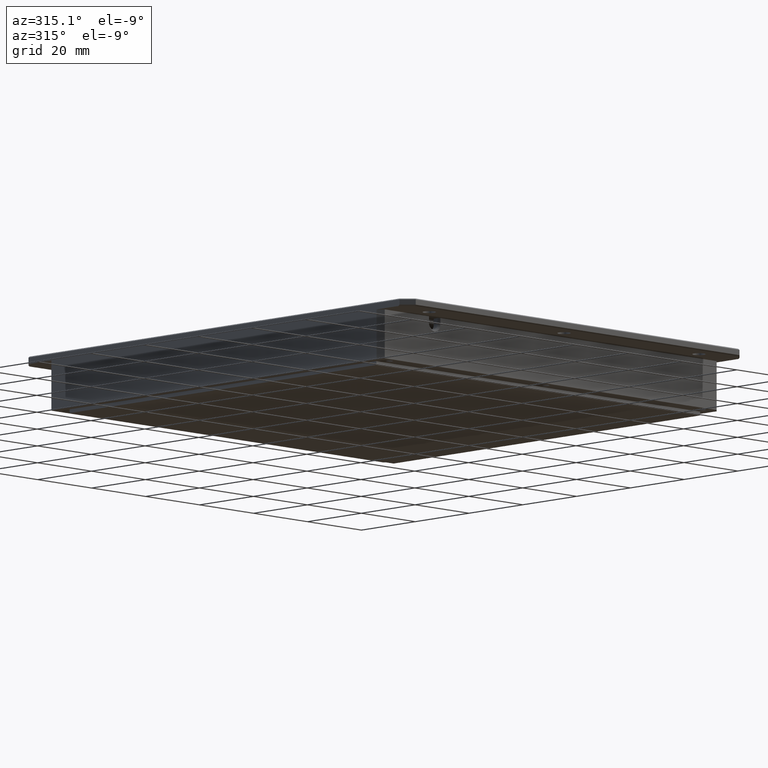
[diagram: clean part render]
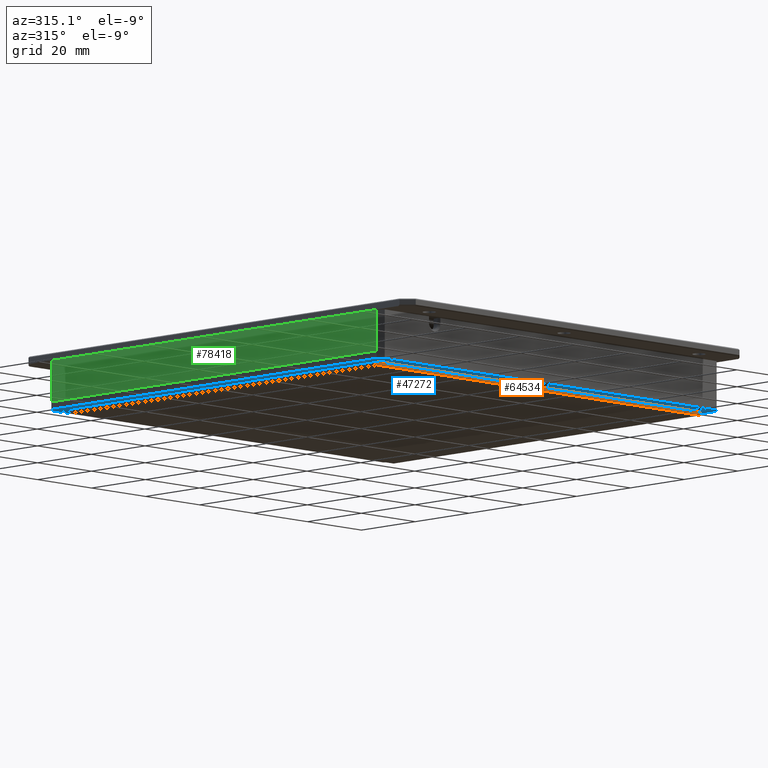
[diagram: same view with three faces highlighted in distinct colors, each labeled with its STEP entity id]
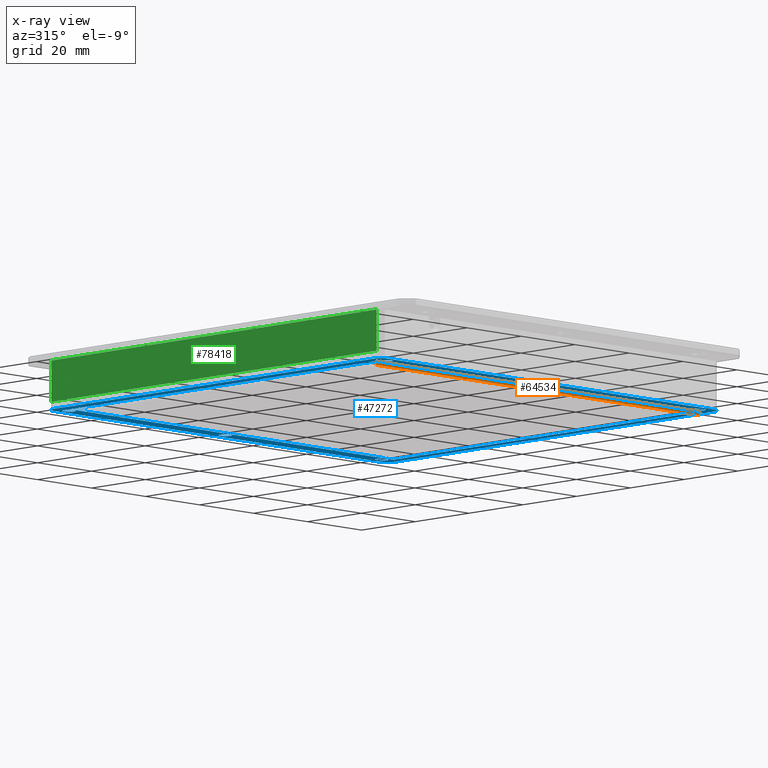
[diagram: x-ray of the same camera — body ghosted, the three highlighted faces saturated]
A machine part, auxiliary view with three faces highlighted in distinct colors.
The next image is the same camera in x-ray (body ghosted, the three faces saturated) — at least one of them is partly hidden behind the body in this view.
Their STEP definitions:

[orange] entity #64534 — the highlighted planar face has unit normal (0, 1, 0).
#1108 = DIRECTION ( 'NONE',  ( -0.0000000000000000000, -0.0000000000000000000, 1.000000000000000000 ) ) ;
#1121 = CARTESIAN_POINT ( 'NONE',  ( -59.99999999999997200, -46.11034746086290400, -3.000000000016370500 ) ) ;
#1645 = PLANE ( 'NONE',  #49686 ) ;
#4126 = CARTESIAN_POINT ( 'NONE',  ( 60.00000000000002100, -46.11034746086290400, -3.000000000016370500 ) ) ;
#5935 = VERTEX_POINT ( 'NONE', #4126 ) ;
#6171 = CARTESIAN_POINT ( 'NONE',  ( -59.99999999999997200, -46.11034746086290400, -3.000000000016370500 ) ) ;
#8772 = CARTESIAN_POINT ( 'NONE',  ( 60.00000000000002100, -46.11034746086290400, -3.000000000016370500 ) ) ;
#12817 = EDGE_LOOP ( 'NONE', ( #40520, #29460, #48144, #79029 ) ) ;
#13153 = LINE ( 'NONE', #6171, #85944 ) ;
#13358 = DIRECTION ( 'NONE',  ( -1.000000000000000000, 0.0000000000000000000, 0.0000000000000000000 ) ) ;
#15266 = DIRECTION ( 'NONE',  ( 0.0000000000000000000, -0.0000000000000000000, 1.000000000000000000 ) ) ;
#20497 = EDGE_CURVE ( 'NONE', #35828, #28870, #13153, .T. ) ;
#25484 = FACE_OUTER_BOUND ( 'NONE', #12817, .T. ) ;
#28870 = VERTEX_POINT ( 'NONE', #64543 ) ;
#29460 = ORIENTED_EDGE ( 'NONE', *, *, #20497, .F. ) ;
#33632 = DIRECTION ( 'NONE',  ( -1.000000000000000000, 0.0000000000000000000, 0.0000000000000000000 ) ) ;
#35828 = VERTEX_POINT ( 'NONE', #1121 ) ;
#36769 = CARTESIAN_POINT ( 'NONE',  ( 60.00000000000002100, -46.11034746086289700, -2.000000000016370500 ) ) ;
#40520 = ORIENTED_EDGE ( 'NONE', *, *, #81345, .T. ) ;
#42077 = EDGE_CURVE ( 'NONE', #5935, #68861, #46739, .T. ) ;
#42523 = VECTOR ( 'NONE', #13358, 1000.000000000000000 ) ;
#43337 = CARTESIAN_POINT ( 'NONE',  ( 60.00000000000002100, -46.11034746086290400, -3.000000000016370500 ) ) ;
#46739 = LINE ( 'NONE', #43337, #75382 ) ;
#48069 = DIRECTION ( 'NONE',  ( -0.0000000000000000000, -0.0000000000000000000, 1.000000000000000000 ) ) ;
#48144 = ORIENTED_EDGE ( 'NONE', *, *, #83449, .F. ) ;
#49686 = AXIS2_PLACEMENT_3D ( 'NONE', #8772, #71888, #15266 ) ;
#49903 = LINE ( 'NONE', #75845, #74246 ) ;
#64534 = ADVANCED_FACE ( 'NONE', ( #25484 ), #1645, .F. ) ;
#64543 = CARTESIAN_POINT ( 'NONE',  ( -59.99999999999997200, -46.11034746086290400, -2.000000000016370500 ) ) ;
#68861 = VERTEX_POINT ( 'NONE', #36769 ) ;
#71888 = DIRECTION ( 'NONE',  ( 0.0000000000000000000, 1.000000000000000000, 0.0000000000000000000 ) ) ;
#74246 = VECTOR ( 'NONE', #33632, 1000.000000000000000 ) ;
#75382 = VECTOR ( 'NONE', #1108, 1000.000000000000000 ) ;
#75845 = CARTESIAN_POINT ( 'NONE',  ( 60.00000000000002100, -46.11034746086290400, -2.000000000016370500 ) ) ;
#79029 = ORIENTED_EDGE ( 'NONE', *, *, #42077, .T. ) ;
#80078 = LINE ( 'NONE', #84217, #42523 ) ;
#81345 = EDGE_CURVE ( 'NONE', #68861, #28870, #49903, .T. ) ;
#83449 = EDGE_CURVE ( 'NONE', #5935, #35828, #80078, .T. ) ;
#84217 = CARTESIAN_POINT ( 'NONE',  ( 60.00000000000002100, -46.11034746086290400, -3.000000000016370500 ) ) ;
#85944 = VECTOR ( 'NONE', #48069, 1000.000000000000000 ) ;

[blue] entity #47272 — the highlighted planar face has unit normal (0, 0, 1).
#9 = CARTESIAN_POINT ( 'NONE',  ( -58.35509736540662800, 69.88965253913714500, -1.999999999969077000 ) ) ;
#71 = LINE ( 'NONE', #63520, #18876 ) ;
#552 = CARTESIAN_POINT ( 'NONE',  ( 62.64490263459333600, -49.61034746086289700, -2.000000000016370500 ) ) ;
#622 = AXIS2_PLACEMENT_3D ( 'NONE', #56085, #42214, #70565 ) ;
#773 = ORIENTED_EDGE ( 'NONE', *, *, #18297, .T. ) ;
#918 = EDGE_CURVE ( 'NONE', #89419, #37714, #80436, .T. ) ;
#1134 = DIRECTION ( 'NONE',  ( -1.000000000000000000, 0.0000000000000000000, 0.0000000000000000000 ) ) ;
#1382 = VERTEX_POINT ( 'NONE', #5742 ) ;
#2304 = CARTESIAN_POINT ( 'NONE',  ( -63.35509736540666400, -51.11034746086286900, -2.000000000016370500 ) ) ;
#2929 = DIRECTION ( 'NONE',  ( 2.220446049250313100E-016, 1.000000000000000000, 0.0000000000000000000 ) ) ;
#2947 = EDGE_CURVE ( 'NONE', #38451, #64689, #91327, .T. ) ;
#4048 = DIRECTION ( 'NONE',  ( 0.0000000000000000000, 0.0000000000000000000, -1.000000000000000000 ) ) ;
#4149 = EDGE_LOOP ( 'NONE', ( #23413, #14849 ) ) ;
#4340 = DIRECTION ( 'NONE',  ( -1.000000000000000000, 0.0000000000000000000, 0.0000000000000000000 ) ) ;
#4723 = CARTESIAN_POINT ( 'NONE',  ( -63.35509736540666400, -49.61034746086287600, -2.000000000016370500 ) ) ;
#5742 = CARTESIAN_POINT ( 'NONE',  ( 60.00000000000003600, 67.88965253913707400, -2.000000000016370500 ) ) ;
#5744 = ORIENTED_EDGE ( 'NONE', *, *, #81161, .F. ) ;
#6207 = DIRECTION ( 'NONE',  ( -1.000000000000000000, 0.0000000000000000000, 0.0000000000000000000 ) ) ;
#6376 = DIRECTION ( 'NONE',  ( -1.217349807703022600E-016, -1.000000000000000000, 0.0000000000000000000 ) ) ;
#7199 = CARTESIAN_POINT ( 'NONE',  ( -61.85509736540663500, -51.11034746086287600, -2.000000000016370500 ) ) ;
#7378 = VERTEX_POINT ( 'NONE', #42398 ) ;
#7430 = EDGE_CURVE ( 'NONE', #7378, #89419, #47610, .T. ) ;
#7675 = EDGE_CURVE ( 'NONE', #9883, #77764, #59587, .T. ) ;
#8282 = CIRCLE ( 'NONE', #34198, 1.799999999983814500 ) ;
#9245 = LINE ( 'NONE', #2304, #40041 ) ;
#9883 = VERTEX_POINT ( 'NONE', #51846 ) ;
#11172 = LINE ( 'NONE', #18574, #13364 ) ;
#11349 = EDGE_CURVE ( 'NONE', #1382, #68861, #35692, .T. ) ;
#11491 = ORIENTED_EDGE ( 'NONE', *, *, #83712, .F. ) ;
#11871 = DIRECTION ( 'NONE',  ( -0.0000000000000000000, -0.0000000000000000000, 1.000000000000000000 ) ) ;
#12362 = DIRECTION ( 'NONE',  ( -1.000000000000000000, 0.0000000000000000000, 0.0000000000000000000 ) ) ;
#13364 = VECTOR ( 'NONE', #47492, 1000.000000000000000 ) ;
#13428 = CARTESIAN_POINT ( 'NONE',  ( -59.99999999999995700, 67.88965253913708900, -2.000000000016370500 ) ) ;
#14096 = DIRECTION ( 'NONE',  ( 0.7071067811865411300, 0.7071067811865539000, -0.0000000000000000000 ) ) ;
#14842 = CARTESIAN_POINT ( 'NONE',  ( 59.44490263459170600, -48.11034746086288300, -2.000000000025920200 ) ) ;
#14849 = ORIENTED_EDGE ( 'NONE', *, *, #30226, .F. ) ;
#16383 = FACE_BOUND ( 'NONE', #25986, .T. ) ;
#17476 = EDGE_LOOP ( 'NONE', ( #5744, #28002 ) ) ;
#18047 = CARTESIAN_POINT ( 'NONE',  ( -0.3550973654066341700, 69.88965253913711700, -2.000000000025920200 ) ) ;
#18297 = EDGE_CURVE ( 'NONE', #63561, #7378, #71, .T. ) ;
#18562 = DIRECTION ( 'NONE',  ( 0.0000000000000000000, 0.0000000000000000000, -1.000000000000000000 ) ) ;
#18574 = CARTESIAN_POINT ( 'NONE',  ( 62.64490263459336500, 72.88965253913708900, -2.000000000016370500 ) ) ;
#18876 = VECTOR ( 'NONE', #27490, 1000.000000000000000 ) ;
#19346 = ORIENTED_EDGE ( 'NONE', *, *, #31460, .F. ) ;
#19444 = CARTESIAN_POINT ( 'NONE',  ( 62.64490263459333600, -51.11034746086289700, -2.000000000016370500 ) ) ;
#19892 = DIRECTION ( 'NONE',  ( -1.000000000000000000, 0.0000000000000000000, 0.0000000000000000000 ) ) ;
#20313 = VERTEX_POINT ( 'NONE', #32709 ) ;
#20483 = DIRECTION ( 'NONE',  ( 0.0000000000000000000, 0.0000000000000000000, -1.000000000000000000 ) ) ;
#20741 = FACE_BOUND ( 'NONE', #53579, .T. ) ;
#21070 = ORIENTED_EDGE ( 'NONE', *, *, #63296, .T. ) ;
#22645 = EDGE_CURVE ( 'NONE', #85951, #26176, #56727, .T. ) ;
#23360 = AXIS2_PLACEMENT_3D ( 'NONE', #24694, #4048, #4340 ) ;
#23413 = ORIENTED_EDGE ( 'NONE', *, *, #22645, .F. ) ;
#24269 = VERTEX_POINT ( 'NONE', #82289 ) ;
#24383 = DIRECTION ( 'NONE',  ( -1.000000000000000000, 0.0000000000000000000, 0.0000000000000000000 ) ) ;
#24694 = CARTESIAN_POINT ( 'NONE',  ( -0.3550973654066619200, -48.11034746086286900, -2.000000000025920200 ) ) ;
#24703 = AXIS2_PLACEMENT_3D ( 'NONE', #69357, #54587, #12362 ) ;
#25208 = FACE_BOUND ( 'NONE', #80246, .T. ) ;
#25522 = VERTEX_POINT ( 'NONE', #49896 ) ;
#25538 = ORIENTED_EDGE ( 'NONE', *, *, #57321, .T. ) ;
#25986 = EDGE_LOOP ( 'NONE', ( #59574, #67967, #65471, #88091 ) ) ;
#26176 = VERTEX_POINT ( 'NONE', #58106 ) ;
#26265 = CARTESIAN_POINT ( 'NONE',  ( -2.155097365397748500, -48.11034746086286900, -2.000000000025920200 ) ) ;
#26507 = DIRECTION ( 'NONE',  ( -1.000000000000000000, 2.220446049250313100E-016, 0.0000000000000000000 ) ) ;
#27264 = VECTOR ( 'NONE', #56176, 1000.000000000000000 ) ;
#27434 = CARTESIAN_POINT ( 'NONE',  ( -58.35509736540662800, 69.88965253913714500, -1.999999999969077000 ) ) ;
#27490 = DIRECTION ( 'NONE',  ( 0.7071067811865474600, -0.7071067811865476800, -0.0000000000000000000 ) ) ;
#28002 = ORIENTED_EDGE ( 'NONE', *, *, #83854, .F. ) ;
#28042 = DIRECTION ( 'NONE',  ( -0.0000000000000000000, -0.0000000000000000000, 1.000000000000000000 ) ) ;
#28282 = ORIENTED_EDGE ( 'NONE', *, *, #7675, .F. ) ;
#28422 = FACE_BOUND ( 'NONE', #4149, .T. ) ;
#28436 = CARTESIAN_POINT ( 'NONE',  ( -59.99999999999997200, 10.88965253913709600, -2.000000000016370500 ) ) ;
#28582 = EDGE_CURVE ( 'NONE', #86196, #71137, #62712, .T. ) ;
#28798 = ORIENTED_EDGE ( 'NONE', *, *, #54933, .T. ) ;
#28870 = VERTEX_POINT ( 'NONE', #64543 ) ;
#28941 = ORIENTED_EDGE ( 'NONE', *, *, #918, .T. ) ;
#29831 = VERTEX_POINT ( 'NONE', #38212 ) ;
#29996 = ORIENTED_EDGE ( 'NONE', *, *, #2947, .T. ) ;
#30226 = EDGE_CURVE ( 'NONE', #26176, #85951, #81944, .T. ) ;
#30262 = ORIENTED_EDGE ( 'NONE', *, *, #38902, .F. ) ;
#30470 = ORIENTED_EDGE ( 'NONE', *, *, #7430, .T. ) ;
#30556 = CARTESIAN_POINT ( 'NONE',  ( -60.15509736539044600, 69.88965253913714500, -1.999999999969077000 ) ) ;
#30717 = CIRCLE ( 'NONE', #37384, 1.799999999998365400 ) ;
#31460 = EDGE_CURVE ( 'NONE', #24269, #29831, #84562, .T. ) ;
#32709 = CARTESIAN_POINT ( 'NONE',  ( 1.444902634584424500, -48.11034746086286900, -2.000000000025920200 ) ) ;
#33632 = DIRECTION ( 'NONE',  ( -1.000000000000000000, 0.0000000000000000000, 0.0000000000000000000 ) ) ;
#33683 = PLANE ( 'NONE',  #42890 ) ;
#33846 = ORIENTED_EDGE ( 'NONE', *, *, #28582, .T. ) ;
#34198 = AXIS2_PLACEMENT_3D ( 'NONE', #27434, #68772, #6207 ) ;
#34991 = LINE ( 'NONE', #28436, #27264 ) ;
#35678 = CARTESIAN_POINT ( 'NONE',  ( 61.14490263459333600, -51.11034746086289700, -2.000000000016370500 ) ) ;
#35692 = LINE ( 'NONE', #41480, #56627 ) ;
#36506 = CARTESIAN_POINT ( 'NONE',  ( 55.84490263459500200, 69.88965253913711700, -2.000000000025920200 ) ) ;
#36769 = CARTESIAN_POINT ( 'NONE',  ( 60.00000000000002100, -46.11034746086289700, -2.000000000016370500 ) ) ;
#37384 = AXIS2_PLACEMENT_3D ( 'NONE', #54083, #11871, #88979 ) ;
#37714 = VERTEX_POINT ( 'NONE', #41218 ) ;
#38212 = CARTESIAN_POINT ( 'NONE',  ( -56.55509736542284600, -48.11034746086285500, -1.999999999969077000 ) ) ;
#38451 = VERTEX_POINT ( 'NONE', #91095 ) ;
#38902 = EDGE_CURVE ( 'NONE', #77764, #9883, #67408, .T. ) ;
#38965 = DIRECTION ( 'NONE',  ( -1.000000000000000000, 0.0000000000000000000, 0.0000000000000000000 ) ) ;
#39155 = CIRCLE ( 'NONE', #83404, 1.799999999983814500 ) ;
#39467 = CARTESIAN_POINT ( 'NONE',  ( -0.3550973654066619200, -48.11034746086286900, -2.000000000025920200 ) ) ;
#39510 = DIRECTION ( 'NONE',  ( 1.000000000000000000, -2.220446049250313100E-016, 0.0000000000000000000 ) ) ;
#39945 = VERTEX_POINT ( 'NONE', #13428 ) ;
#39986 = LINE ( 'NONE', #52976, #88662 ) ;
#40041 = VECTOR ( 'NONE', #2929, 1000.000000000000000 ) ;
#41218 = CARTESIAN_POINT ( 'NONE',  ( 61.14490263459332900, -51.11034746086289700, -2.000000000016370500 ) ) ;
#41480 = CARTESIAN_POINT ( 'NONE',  ( 60.00000000000002800, 10.88965253913709600, -2.000000000016370500 ) ) ;
#42214 = DIRECTION ( 'NONE',  ( 0.0000000000000000000, 0.0000000000000000000, -1.000000000000000000 ) ) ;
#42398 = CARTESIAN_POINT ( 'NONE',  ( 62.64490263459336500, 71.38965253913708900, -2.000000000016370500 ) ) ;
#42468 = DIRECTION ( 'NONE',  ( -0.7071067811865476800, -0.7071067811865474600, -0.0000000000000000000 ) ) ;
#42575 = VERTEX_POINT ( 'NONE', #7199 ) ;
#42737 = CARTESIAN_POINT ( 'NONE',  ( -63.35509736540666400, -49.61034746086286900, -2.000000000016370500 ) ) ;
#42890 = AXIS2_PLACEMENT_3D ( 'NONE', #54620, #67875, #39510 ) ;
#43509 = CIRCLE ( 'NONE', #78856, 1.799999999983814500 ) ;
#44929 = VECTOR ( 'NONE', #14096, 1000.000000000000000 ) ;
#45767 = EDGE_CURVE ( 'NONE', #72734, #38451, #9245, .T. ) ;
#47272 = ADVANCED_FACE ( 'NONE', ( #64827, #65929, #25208, #28422, #20741, #60411, #84681, #16383 ), #33683, .F. ) ;
#47492 = DIRECTION ( 'NONE',  ( 1.000000000000000000, -2.220446049250313100E-016, -0.0000000000000000000 ) ) ;
#47610 = LINE ( 'NONE', #77835, #58620 ) ;
#49896 = CARTESIAN_POINT ( 'NONE',  ( -56.55509736542281700, 69.88965253913714500, -1.999999999969077000 ) ) ;
#49903 = LINE ( 'NONE', #75845, #74246 ) ;
#50083 = CIRCLE ( 'NONE', #23360, 1.799999999991086500 ) ;
#50144 = EDGE_LOOP ( 'NONE', ( #82645, #21070 ) ) ;
#50193 = EDGE_CURVE ( 'NONE', #89099, #25522, #39155, .T. ) ;
#51846 = CARTESIAN_POINT ( 'NONE',  ( 1.444902634584452400, 69.88965253913711700, -2.000000000025920200 ) ) ;
#52834 = CARTESIAN_POINT ( 'NONE',  ( 55.84490263459497300, -48.11034746086288300, -2.000000000025920200 ) ) ;
#52976 = CARTESIAN_POINT ( 'NONE',  ( -59.99999999999996400, 67.88965253913708900, -2.000000000016370500 ) ) ;
#53579 = EDGE_LOOP ( 'NONE', ( #30262, #28282 ) ) ;
#54083 = CARTESIAN_POINT ( 'NONE',  ( 57.64490263459334300, -48.11034746086288300, -2.000000000025920200 ) ) ;
#54587 = DIRECTION ( 'NONE',  ( 0.0000000000000000000, 0.0000000000000000000, -1.000000000000000000 ) ) ;
#54620 = CARTESIAN_POINT ( 'NONE',  ( 62.64490263459336500, 72.88965253913708900, -2.000000000016370500 ) ) ;
#54769 = CARTESIAN_POINT ( 'NONE',  ( 57.64490263459334300, -48.11034746086288300, -2.000000000025920200 ) ) ;
#54933 = EDGE_CURVE ( 'NONE', #42575, #72734, #83609, .T. ) ;
#55660 = CARTESIAN_POINT ( 'NONE',  ( -2.155097365397720600, 69.88965253913711700, -2.000000000025920200 ) ) ;
#56085 = CARTESIAN_POINT ( 'NONE',  ( -58.35509736540665700, -48.11034746086285500, -1.999999999969077000 ) ) ;
#56176 = DIRECTION ( 'NONE',  ( 1.217349807703022600E-016, 1.000000000000000000, 0.0000000000000000000 ) ) ;
#56627 = VECTOR ( 'NONE', #6376, 1000.000000000000000 ) ;
#56727 = CIRCLE ( 'NONE', #80768, 1.799999999998365400 ) ;
#56889 = EDGE_LOOP ( 'NONE', ( #33846, #84263 ) ) ;
#57321 = EDGE_CURVE ( 'NONE', #37714, #42575, #70417, .T. ) ;
#57498 = CARTESIAN_POINT ( 'NONE',  ( 57.64490263459337200, 69.88965253913711700, -2.000000000025920200 ) ) ;
#58106 = CARTESIAN_POINT ( 'NONE',  ( 59.44490263459173500, 69.88965253913711700, -2.000000000025920200 ) ) ;
#58260 = AXIS2_PLACEMENT_3D ( 'NONE', #54769, #90562, #75746 ) ;
#58481 = CARTESIAN_POINT ( 'NONE',  ( 61.14490263459339300, 72.88965253913708900, -2.000000000016370500 ) ) ;
#58620 = VECTOR ( 'NONE', #64839, 1000.000000000000000 ) ;
#59166 = CARTESIAN_POINT ( 'NONE',  ( -58.35509736540665700, -48.11034746086285500, -1.999999999969077000 ) ) ;
#59455 = DIRECTION ( 'NONE',  ( 0.0000000000000000000, 0.0000000000000000000, -1.000000000000000000 ) ) ;
#59574 = ORIENTED_EDGE ( 'NONE', *, *, #61110, .F. ) ;
#59587 = CIRCLE ( 'NONE', #71153, 1.799999999991086500 ) ;
#60318 = DIRECTION ( 'NONE',  ( 1.000000000000000000, -1.156482317317871500E-016, 0.0000000000000000000 ) ) ;
#60411 = FACE_BOUND ( 'NONE', #50144, .T. ) ;
#60837 = EDGE_CURVE ( 'NONE', #71137, #86196, #30717, .T. ) ;
#61110 = EDGE_CURVE ( 'NONE', #28870, #39945, #34991, .T. ) ;
#62712 = CIRCLE ( 'NONE', #58260, 1.799999999998365400 ) ;
#63296 = EDGE_CURVE ( 'NONE', #25522, #89099, #8282, .T. ) ;
#63520 = CARTESIAN_POINT ( 'NONE',  ( 62.64490263459336500, 71.38965253913711700, -2.000000000016370500 ) ) ;
#63561 = VERTEX_POINT ( 'NONE', #58481 ) ;
#63661 = EDGE_CURVE ( 'NONE', #39945, #1382, #39986, .T. ) ;
#64496 = EDGE_LOOP ( 'NONE', ( #28941, #25538, #28798, #75387, #29996, #82704, #773, #30470 ) ) ;
#64543 = CARTESIAN_POINT ( 'NONE',  ( -59.99999999999997200, -46.11034746086290400, -2.000000000016370500 ) ) ;
#64581 = DIRECTION ( 'NONE',  ( 0.0000000000000000000, 0.0000000000000000000, -1.000000000000000000 ) ) ;
#64689 = VERTEX_POINT ( 'NONE', #66060 ) ;
#64794 = VECTOR ( 'NONE', #84977, 1000.000000000000000 ) ;
#64827 = FACE_BOUND ( 'NONE', #56889, .T. ) ;
#64839 = DIRECTION ( 'NONE',  ( -2.220446049250313100E-016, -1.000000000000000000, -0.0000000000000000000 ) ) ;
#65471 = ORIENTED_EDGE ( 'NONE', *, *, #11349, .F. ) ;
#65929 = FACE_BOUND ( 'NONE', #17476, .T. ) ;
#66060 = CARTESIAN_POINT ( 'NONE',  ( -61.85509736540662100, 72.88965253913711700, -2.000000000016370500 ) ) ;
#67017 = DIRECTION ( 'NONE',  ( 0.0000000000000000000, 0.0000000000000000000, -1.000000000000000000 ) ) ;
#67408 = CIRCLE ( 'NONE', #24703, 1.799999999991086500 ) ;
#67875 = DIRECTION ( 'NONE',  ( 0.0000000000000000000, 0.0000000000000000000, 1.000000000000000000 ) ) ;
#67967 = ORIENTED_EDGE ( 'NONE', *, *, #81345, .F. ) ;
#68129 = DIRECTION ( 'NONE',  ( -1.000000000000000000, 0.0000000000000000000, 0.0000000000000000000 ) ) ;
#68772 = DIRECTION ( 'NONE',  ( -0.0000000000000000000, -0.0000000000000000000, 1.000000000000000000 ) ) ;
#68861 = VERTEX_POINT ( 'NONE', #36769 ) ;
#69319 = VECTOR ( 'NONE', #42468, 1000.000000000000000 ) ;
#69357 = CARTESIAN_POINT ( 'NONE',  ( -0.3550973654066341700, 69.88965253913711700, -2.000000000025920200 ) ) ;
#70417 = LINE ( 'NONE', #19444, #84745 ) ;
#70565 = DIRECTION ( 'NONE',  ( -1.000000000000000000, 0.0000000000000000000, 0.0000000000000000000 ) ) ;
#71137 = VERTEX_POINT ( 'NONE', #14842 ) ;
#71153 = AXIS2_PLACEMENT_3D ( 'NONE', #18047, #67017, #38965 ) ;
#72734 = VERTEX_POINT ( 'NONE', #4723 ) ;
#74246 = VECTOR ( 'NONE', #33632, 1000.000000000000000 ) ;
#74300 = VERTEX_POINT ( 'NONE', #26265 ) ;
#75387 = ORIENTED_EDGE ( 'NONE', *, *, #45767, .T. ) ;
#75746 = DIRECTION ( 'NONE',  ( -1.000000000000000000, 0.0000000000000000000, 0.0000000000000000000 ) ) ;
#75845 = CARTESIAN_POINT ( 'NONE',  ( 60.00000000000002100, -46.11034746086290400, -2.000000000016370500 ) ) ;
#76042 = EDGE_CURVE ( 'NONE', #64689, #63561, #11172, .T. ) ;
#76582 = CARTESIAN_POINT ( 'NONE',  ( 57.64490263459337200, 69.88965253913711700, -2.000000000025920200 ) ) ;
#76660 = AXIS2_PLACEMENT_3D ( 'NONE', #39467, #18562, #68129 ) ;
#77764 = VERTEX_POINT ( 'NONE', #55660 ) ;
#77835 = CARTESIAN_POINT ( 'NONE',  ( 62.64490263459333600, -51.11034746086289700, -2.000000000016370500 ) ) ;
#78856 = AXIS2_PLACEMENT_3D ( 'NONE', #59166, #59455, #24383 ) ;
#80246 = EDGE_LOOP ( 'NONE', ( #19346, #11491 ) ) ;
#80436 = LINE ( 'NONE', #35678, #69319 ) ;
#80768 = AXIS2_PLACEMENT_3D ( 'NONE', #76582, #20483, #19892 ) ;
#80872 = AXIS2_PLACEMENT_3D ( 'NONE', #57498, #64581, #1134 ) ;
#81161 = EDGE_CURVE ( 'NONE', #74300, #20313, #85387, .T. ) ;
#81345 = EDGE_CURVE ( 'NONE', #68861, #28870, #49903, .T. ) ;
#81944 = CIRCLE ( 'NONE', #80872, 1.799999999998365400 ) ;
#82289 = CARTESIAN_POINT ( 'NONE',  ( -60.15509736539047500, -48.11034746086285500, -1.999999999969077000 ) ) ;
#82645 = ORIENTED_EDGE ( 'NONE', *, *, #50193, .T. ) ;
#82704 = ORIENTED_EDGE ( 'NONE', *, *, #76042, .T. ) ;
#83404 = AXIS2_PLACEMENT_3D ( 'NONE', #9, #28042, #83880 ) ;
#83609 = LINE ( 'NONE', #42737, #64794 ) ;
#83712 = EDGE_CURVE ( 'NONE', #29831, #24269, #43509, .T. ) ;
#83854 = EDGE_CURVE ( 'NONE', #20313, #74300, #50083, .T. ) ;
#83880 = DIRECTION ( 'NONE',  ( -1.000000000000000000, 0.0000000000000000000, 0.0000000000000000000 ) ) ;
#84263 = ORIENTED_EDGE ( 'NONE', *, *, #60837, .T. ) ;
#84562 = CIRCLE ( 'NONE', #622, 1.799999999983814500 ) ;
#84681 = FACE_OUTER_BOUND ( 'NONE', #64496, .T. ) ;
#84745 = VECTOR ( 'NONE', #26507, 1000.000000000000000 ) ;
#84977 = DIRECTION ( 'NONE',  ( -0.7071067811865474600, 0.7071067811865476800, 0.0000000000000000000 ) ) ;
#85244 = CARTESIAN_POINT ( 'NONE',  ( -61.85509736540663500, 72.88965253913711700, -2.000000000016370500 ) ) ;
#85387 = CIRCLE ( 'NONE', #76660, 1.799999999991086500 ) ;
#85951 = VERTEX_POINT ( 'NONE', #36506 ) ;
#86196 = VERTEX_POINT ( 'NONE', #52834 ) ;
#88091 = ORIENTED_EDGE ( 'NONE', *, *, #63661, .F. ) ;
#88662 = VECTOR ( 'NONE', #60318, 1000.000000000000000 ) ;
#88979 = DIRECTION ( 'NONE',  ( -1.000000000000000000, 0.0000000000000000000, 0.0000000000000000000 ) ) ;
#89099 = VERTEX_POINT ( 'NONE', #30556 ) ;
#89419 = VERTEX_POINT ( 'NONE', #552 ) ;
#90562 = DIRECTION ( 'NONE',  ( -0.0000000000000000000, -0.0000000000000000000, 1.000000000000000000 ) ) ;
#91095 = CARTESIAN_POINT ( 'NONE',  ( -63.35509736540663500, 71.38965253913708900, -2.000000000016370500 ) ) ;
#91327 = LINE ( 'NONE', #85244, #44929 ) ;

[green] entity #78418 — the highlighted planar face has unit normal (1, 0, 0).
#367 = DIRECTION ( 'NONE',  ( 1.000000000000000000, 0.0000000000000000000, 0.0000000000000000000 ) ) ;
#6952 = LINE ( 'NONE', #78446, #84185 ) ;
#8472 = VERTEX_POINT ( 'NONE', #55193 ) ;
#11468 = EDGE_CURVE ( 'NONE', #41675, #32370, #6952, .T. ) ;
#14034 = DIRECTION ( 'NONE',  ( 0.0000000000000000000, 1.000000000000000000, 0.0000000000000000000 ) ) ;
#18794 = EDGE_CURVE ( 'NONE', #41675, #8472, #28120, .T. ) ;
#19266 = VERTEX_POINT ( 'NONE', #34434 ) ;
#21336 = FACE_OUTER_BOUND ( 'NONE', #59108, .T. ) ;
#23612 = CARTESIAN_POINT ( 'NONE',  ( -63.35509736540663500, -49.61034746086291800, 10.99999999998362900 ) ) ;
#24500 = ORIENTED_EDGE ( 'NONE', *, *, #75198, .F. ) ;
#27768 = CARTESIAN_POINT ( 'NONE',  ( -63.35509736540663500, 71.38965253913707400, -1.637058544279312900E-011 ) ) ;
#28120 = LINE ( 'NONE', #76134, #78917 ) ;
#29642 = DIRECTION ( 'NONE',  ( 0.0000000000000000000, 0.0000000000000000000, -1.000000000000000000 ) ) ;
#32370 = VERTEX_POINT ( 'NONE', #27768 ) ;
#34434 = CARTESIAN_POINT ( 'NONE',  ( -63.35509736540663500, -49.61034746086291800, -1.637318752800709400E-011 ) ) ;
#35305 = VECTOR ( 'NONE', #14034, 1000.000000000000000 ) ;
#41675 = VERTEX_POINT ( 'NONE', #87552 ) ;
#43538 = CARTESIAN_POINT ( 'NONE',  ( -63.35509736540663500, -51.11034746086289000, 10.99999999998362900 ) ) ;
#47614 = ORIENTED_EDGE ( 'NONE', *, *, #18794, .F. ) ;
#49172 = DIRECTION ( 'NONE',  ( 0.0000000000000000000, -0.0000000000000000000, -1.000000000000000000 ) ) ;
#51915 = ORIENTED_EDGE ( 'NONE', *, *, #11468, .T. ) ;
#55193 = CARTESIAN_POINT ( 'NONE',  ( -63.35509736540663500, -49.61034746086291800, 10.99999999998362900 ) ) ;
#57400 = CARTESIAN_POINT ( 'NONE',  ( -63.35509736540663500, 72.88965253913710300, -1.637058544279312900E-011 ) ) ;
#59108 = EDGE_LOOP ( 'NONE', ( #24500, #47614, #51915, #83004 ) ) ;
#67300 = LINE ( 'NONE', #57400, #35305 ) ;
#68734 = EDGE_CURVE ( 'NONE', #19266, #32370, #67300, .T. ) ;
#69750 = VECTOR ( 'NONE', #72887, 1000.000000000000000 ) ;
#70780 = LINE ( 'NONE', #23612, #69750 ) ;
#71254 = PLANE ( 'NONE',  #89434 ) ;
#72887 = DIRECTION ( 'NONE',  ( 0.0000000000000000000, 0.0000000000000000000, -1.000000000000000000 ) ) ;
#75198 = EDGE_CURVE ( 'NONE', #8472, #19266, #70780, .T. ) ;
#76134 = CARTESIAN_POINT ( 'NONE',  ( -63.35509736540663500, -51.11034746086289000, 10.99999999998362900 ) ) ;
#76724 = DIRECTION ( 'NONE',  ( 0.0000000000000000000, -1.000000000000000000, -0.0000000000000000000 ) ) ;
#78418 = ADVANCED_FACE ( 'NONE', ( #21336 ), #71254, .F. ) ;
#78446 = CARTESIAN_POINT ( 'NONE',  ( -63.35509736540665000, 71.38965253913706000, 10.99999999998362900 ) ) ;
#78917 = VECTOR ( 'NONE', #76724, 1000.000000000000000 ) ;
#83004 = ORIENTED_EDGE ( 'NONE', *, *, #68734, .F. ) ;
#84185 = VECTOR ( 'NONE', #49172, 1000.000000000000000 ) ;
#87552 = CARTESIAN_POINT ( 'NONE',  ( -63.35509736540663500, 71.38965253913706000, 10.99999999998362900 ) ) ;
#89434 = AXIS2_PLACEMENT_3D ( 'NONE', #43538, #367, #29642 ) ;